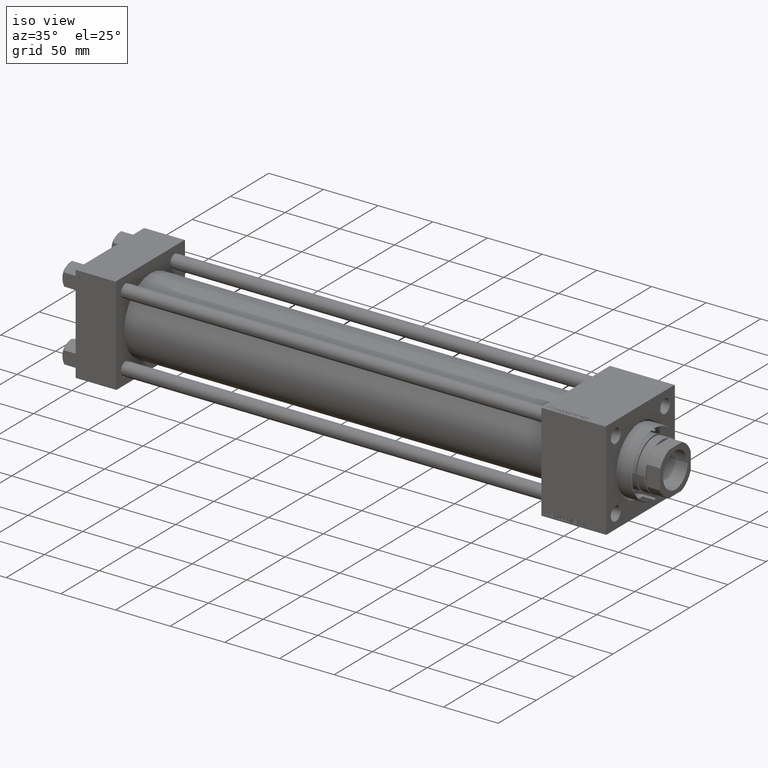
[diagram: clean part render]
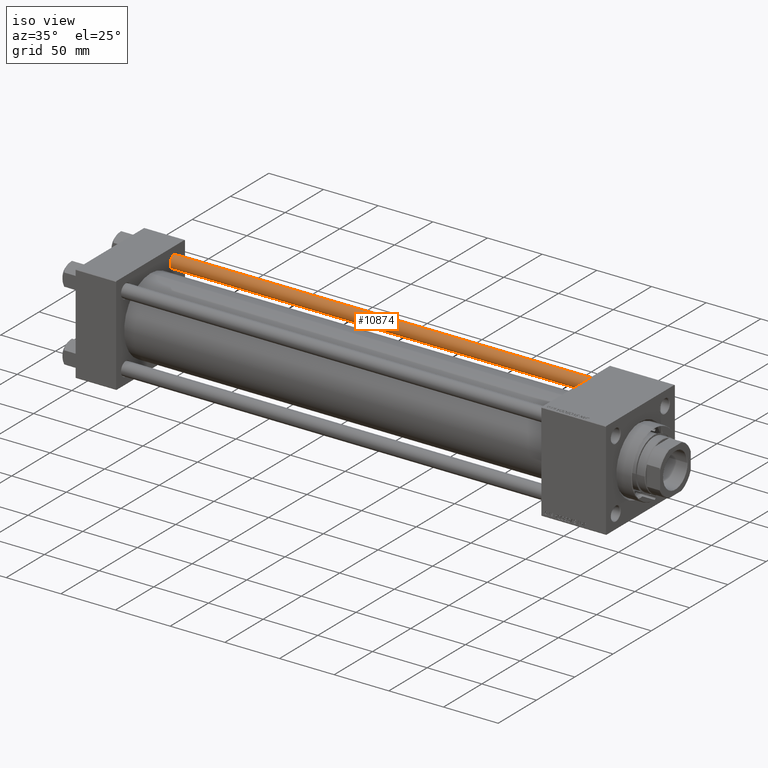
[diagram: same view with one face highlighted and labeled with its STEP entity id]
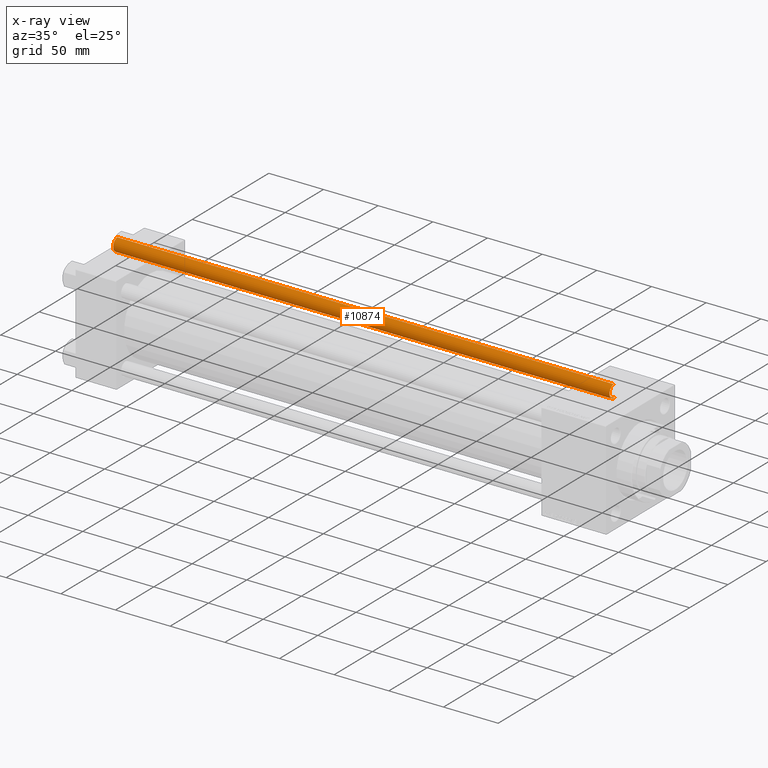
[diagram: x-ray of the same camera — body ghosted, the highlighted face saturated]
A machine part, iso view. The second image highlights one B-rep face of the part: STEP entity #10874.
The next image is the same camera in x-ray: the body ghosted, the highlighted face saturated — about 0% of this face is hidden behind the body in this view.
In plain terms, the highlighted cylindrical surface (edge-blend (fillet) strip) has radius 6 mm, axis along (-1, 0, 0).
Its self-contained STEP definition (entity closure, byte-faithful):
#1856 = EDGE_CURVE ( 'NONE', #20653, #13120, #49175, .T. ) ;
#3794 = DIRECTION ( 'NONE',  ( 0.000000000000000000, 0.000000000000000000, -1.000000000000000000 ) ) ;
#4234 = ORIENTED_EDGE ( 'NONE', *, *, #31315, .T. ) ;
#4289 = CARTESIAN_POINT ( 'NONE',  ( 0.000000000000000000, 0.000000000000000000, 454.5000000000002842 ) ) ;
#4442 = LINE ( 'NONE', #19212, #14745 ) ;
#5874 = CARTESIAN_POINT ( 'NONE',  ( 0.000000000000000000, 0.000000000000000000, 455.0000000000000000 ) ) ;
#6970 = CARTESIAN_POINT ( 'NONE',  ( -6.000000000000000888, 0.000000000000000000, 454.5000000000002842 ) ) ;
#7096 = AXIS2_PLACEMENT_3D ( 'NONE', #4289, #3794, #8608 ) ;
#8608 = DIRECTION ( 'NONE',  ( 1.000000000000000000, 0.000000000000000000, 0.000000000000000000 ) ) ;
#9690 = FACE_OUTER_BOUND ( 'NONE', #33728, .T. ) ;
#9925 = CARTESIAN_POINT ( 'NONE',  ( -6.000000000000000888, 0.000000000000000000, 0.5000000000002224887 ) ) ;
#10197 = DIRECTION ( 'NONE',  ( -0.000000000000000000, -0.000000000000000000, -1.000000000000000000 ) ) ;
#10874 = ADVANCED_FACE ( 'NONE', ( #9690 ), #44021, .T. ) ;
#11503 = CARTESIAN_POINT ( 'NONE',  ( 6.000000000000000888, 7.347880794884119736E-16, 455.0000000000000000 ) ) ;
#13120 = VERTEX_POINT ( 'NONE', #27892 ) ;
#14434 = ORIENTED_EDGE ( 'NONE', *, *, #19316, .T. ) ;
#14745 = VECTOR ( 'NONE', #47165, 1000.000000000000000 ) ;
#15411 = DIRECTION ( 'NONE',  ( 1.000000000000000000, 0.000000000000000000, 0.000000000000000000 ) ) ;
#16558 = EDGE_CURVE ( 'NONE', #20653, #43178, #36336, .T. ) ;
#18648 = DIRECTION ( 'NONE',  ( -0.000000000000000000, -0.000000000000000000, -1.000000000000000000 ) ) ;
#19212 = CARTESIAN_POINT ( 'NONE',  ( -6.000000000000000888, 0.000000000000000000, 455.0000000000000000 ) ) ;
#19225 = CARTESIAN_POINT ( 'NONE',  ( 0.000000000000000000, 0.000000000000000000, 0.5000000000002224887 ) ) ;
#19316 = EDGE_CURVE ( 'NONE', #43178, #38759, #4442, .T. ) ;
#20653 = VERTEX_POINT ( 'NONE', #41716 ) ;
#27892 = CARTESIAN_POINT ( 'NONE',  ( 6.000000000000000888, 7.347880794884119736E-16, 0.5000000000002224887 ) ) ;
#31281 = AXIS2_PLACEMENT_3D ( 'NONE', #19225, #50252, #15411 ) ;
#31315 = EDGE_CURVE ( 'NONE', #38759, #13120, #42608, .T. ) ;
#33616 = ORIENTED_EDGE ( 'NONE', *, *, #16558, .T. ) ;
#33728 = EDGE_LOOP ( 'NONE', ( #36439, #33616, #14434, #4234 ) ) ;
#36162 = DIRECTION ( 'NONE',  ( -1.000000000000000000, 0.000000000000000000, 0.000000000000000000 ) ) ;
#36336 = CIRCLE ( 'NONE', #7096, 6.000000000000000888 ) ;
#36439 = ORIENTED_EDGE ( 'NONE', *, *, #1856, .F. ) ;
#38759 = VERTEX_POINT ( 'NONE', #9925 ) ;
#41716 = CARTESIAN_POINT ( 'NONE',  ( 6.000000000000000888, 7.347880794884119736E-16, 454.5000000000002842 ) ) ;
#41817 = AXIS2_PLACEMENT_3D ( 'NONE', #5874, #10197, #36162 ) ;
#42480 = VECTOR ( 'NONE', #18648, 1000.000000000000000 ) ;
#42608 = CIRCLE ( 'NONE', #31281, 6.000000000000000888 ) ;
#43178 = VERTEX_POINT ( 'NONE', #6970 ) ;
#44021 = CYLINDRICAL_SURFACE ( 'NONE', #41817, 6.000000000000000888 ) ;
#47165 = DIRECTION ( 'NONE',  ( -0.000000000000000000, -0.000000000000000000, -1.000000000000000000 ) ) ;
#49175 = LINE ( 'NONE', #11503, #42480 ) ;
#50252 = DIRECTION ( 'NONE',  ( -0.000000000000000000, -0.000000000000000000, 1.000000000000000000 ) ) ;